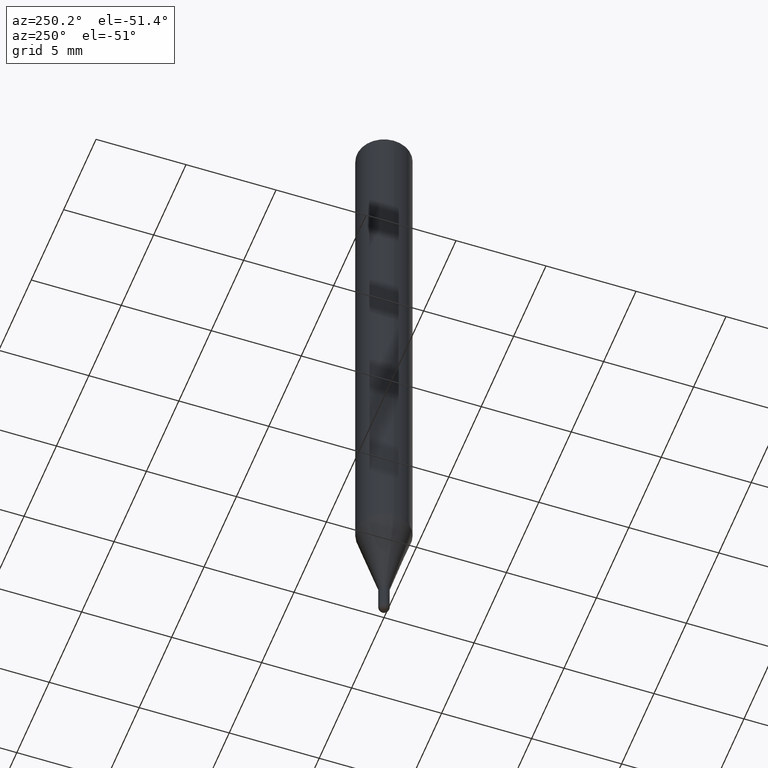
[diagram: clean part render]
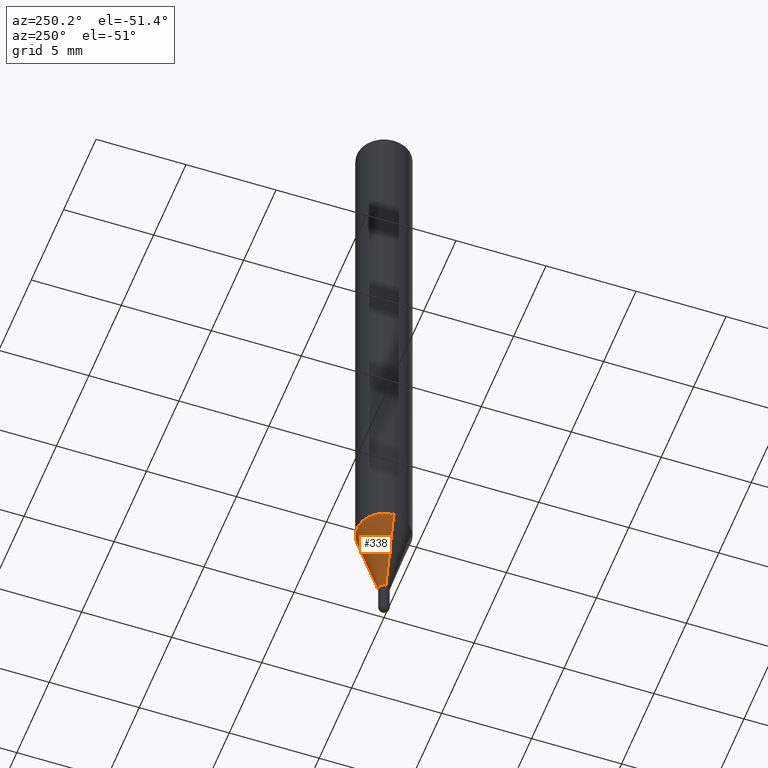
[diagram: same view with one face highlighted and labeled with its STEP entity id]
A machine part, auxiliary view. The second image highlights one B-rep face of the part: STEP entity #338.
In plain terms, the highlighted conical surface has half-angle 15 deg.
Its self-contained STEP definition (entity closure, byte-faithful):
#3 = VERTEX_POINT ( 'NONE', #282 ) ;
#23 = EDGE_LOOP ( 'NONE', ( #167, #341, #320, #401 ) ) ;
#29 = VECTOR ( 'NONE', #423, 39.37007874015748143 ) ;
#46 = CIRCLE ( 'NONE', #273, 0.01180000000000019922 ) ;
#103 = DIRECTION ( 'NONE',  ( -2.445468806185136597E-29, 3.491481338843145583E-15, 1.000000000000000000 ) ) ;
#106 = DIRECTION ( 'NONE',  ( 1.000000000000000000, -6.982962677686264344E-15, 0.000000000000000000 ) ) ;
#121 = EDGE_CURVE ( 'NONE', #441, #434, #46, .T. ) ;
#124 = LINE ( 'NONE', #455, #354 ) ;
#127 = CIRCLE ( 'NONE', #432, 0.05904999999999999832 ) ;
#139 = CARTESIAN_POINT ( 'NONE',  ( 3.485282142575056435E-29, -4.976059204119250988E-15, -1.425199999999999800 ) ) ;
#159 = CARTESIAN_POINT ( 'NONE',  ( -0.01180000000000019922, -4.416506576626797122E-15, -1.425199999999999800 ) ) ;
#161 = CARTESIAN_POINT ( 'NONE',  ( 0.01180000000000019922, -5.058458163715949900E-15, -1.425199999999999800 ) ) ;
#166 = EDGE_CURVE ( 'NONE', #434, #3, #124, .T. ) ;
#167 = ORIENTED_EDGE ( 'NONE', *, *, #121, .T. ) ;
#172 = CARTESIAN_POINT ( 'NONE',  ( 3.485282142575056435E-29, -4.976059204119250988E-15, -1.425199999999999800 ) ) ;
#214 = DIRECTION ( 'NONE',  ( 1.000000000000000000, -6.982962677686265133E-15, 0.000000000000000000 ) ) ;
#227 = EDGE_CURVE ( 'NONE', #346, #3, #127, .T. ) ;
#246 = FACE_OUTER_BOUND ( 'NONE', #23, .T. ) ;
#262 = DIRECTION ( 'NONE',  ( -0.2588190451025285110, 5.211531920934594429E-15, 0.9659258262890662028 ) ) ;
#273 = AXIS2_PLACEMENT_3D ( 'NONE', #172, #337, #498 ) ;
#282 = CARTESIAN_POINT ( 'NONE',  ( -0.05904999999999999832, -3.940797991954035310E-15, -1.248860599342376920 ) ) ;
#284 = EDGE_CURVE ( 'NONE', #441, #346, #503, .T. ) ;
#301 = DIRECTION ( 'NONE',  ( -2.445468806185136597E-29, 3.491481338843145583E-15, 1.000000000000000000 ) ) ;
#303 = AXIS2_PLACEMENT_3D ( 'NONE', #139, #301, #106 ) ;
#320 = ORIENTED_EDGE ( 'NONE', *, *, #227, .F. ) ;
#337 = DIRECTION ( 'NONE',  ( -2.445468806185136597E-29, 3.491481338843145583E-15, 1.000000000000000000 ) ) ;
#338 = ADVANCED_FACE ( 'NONE', ( #246 ), #413, .T. ) ;
#341 = ORIENTED_EDGE ( 'NONE', *, *, #166, .T. ) ;
#346 = VERTEX_POINT ( 'NONE', #470 ) ;
#354 = VECTOR ( 'NONE', #262, 39.37007874015748143 ) ;
#401 = ORIENTED_EDGE ( 'NONE', *, *, #284, .F. ) ;
#413 = CONICAL_SURFACE ( 'NONE', #303, 0.01180000000000019922, 0.2617993877991574569 ) ;
#423 = DIRECTION ( 'NONE',  ( 0.2588190451025285110, 1.565188264969565170E-15, 0.9659258262890662028 ) ) ;
#432 = AXIS2_PLACEMENT_3D ( 'NONE', #467, #103, #214 ) ;
#434 = VERTEX_POINT ( 'NONE', #159 ) ;
#441 = VERTEX_POINT ( 'NONE', #161 ) ;
#455 = CARTESIAN_POINT ( 'NONE',  ( -0.01180000000000019922, -4.892215161299557356E-15, -1.425199999999999800 ) ) ;
#463 = CARTESIAN_POINT ( 'NONE',  ( 0.01180000000000019922, -5.058458163715949900E-15, -1.425199999999999800 ) ) ;
#467 = CARTESIAN_POINT ( 'NONE',  ( 3.054049638965456516E-29, -4.360373477420374803E-15, -1.248860599342376920 ) ) ;
#470 = CARTESIAN_POINT ( 'NONE',  ( 0.05904999999999999832, -4.772717423537748934E-15, -1.248860599342376920 ) ) ;
#498 = DIRECTION ( 'NONE',  ( 1.000000000000000000, -6.982962677686264344E-15, 0.000000000000000000 ) ) ;
#503 = LINE ( 'NONE', #463, #29 ) ;